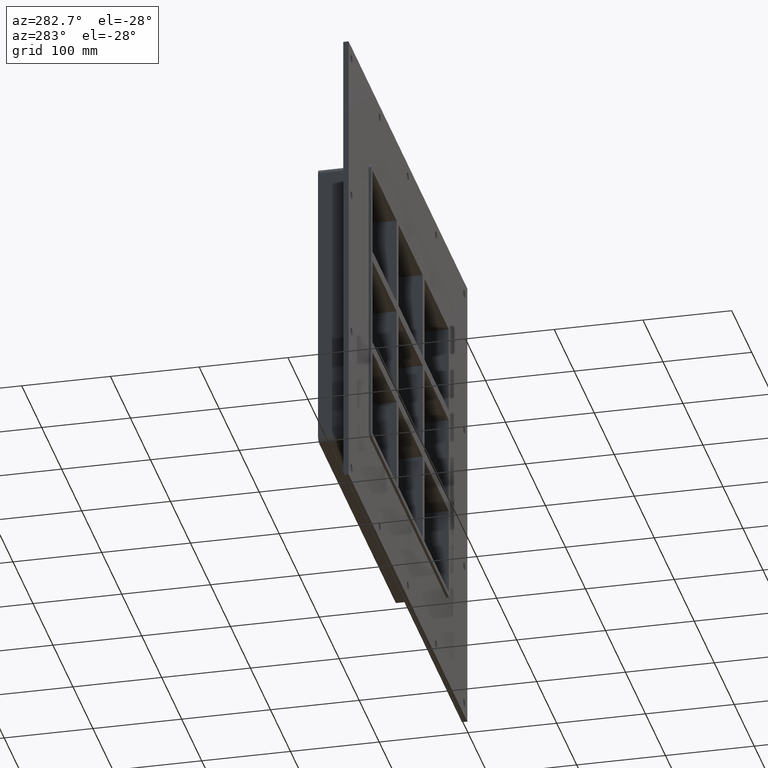
[diagram: clean part render]
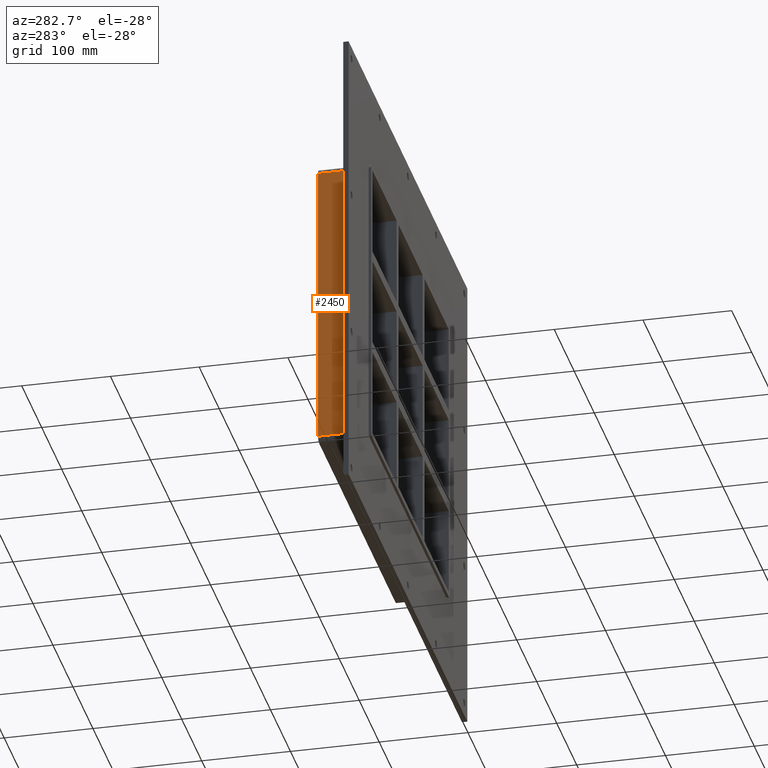
[diagram: same view with one face highlighted and labeled with its STEP entity id]
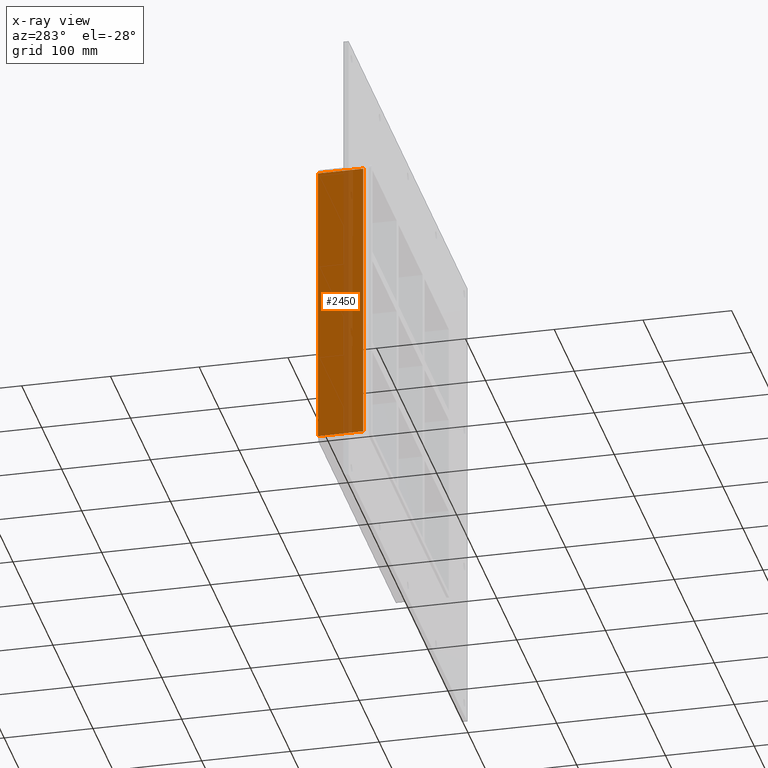
[diagram: x-ray of the same camera — body ghosted, the highlighted face saturated]
A machine part, auxiliary view. The second image highlights one B-rep face of the part: STEP entity #2450.
The next image is the same camera in x-ray: the body ghosted, the highlighted face saturated — about 20% of this face is hidden behind the body in this view.
In plain terms, the highlighted planar face has unit normal (-1, 0, 0).
Its self-contained STEP definition (entity closure, byte-faithful):
#972=CARTESIAN_POINT('',(-196.75000000000006,57.0,-163.5));
#973=VERTEX_POINT('',#972);
#981=CARTESIAN_POINT('',(-196.75000000000006,57.0,163.5));
#982=VERTEX_POINT('',#981);
#983=CARTESIAN_POINT('',(-196.75000000000006,57.0,-163.5));
#984=DIRECTION('',(0.0,0.0,1.0));
#985=VECTOR('',#984,327.0);
#986=LINE('',#983,#985);
#987=EDGE_CURVE('',#973,#982,#986,.T.);
#1907=CARTESIAN_POINT('',(-196.75000000000006,6.000000000000001,-163.5));
#1908=VERTEX_POINT('',#1907);
#1958=CARTESIAN_POINT('',(-196.75000000000006,6.000000000000001,163.5));
#1959=VERTEX_POINT('',#1958);
#1967=CARTESIAN_POINT('',(-196.75000000000006,6.000000000000001,-163.5));
#1968=DIRECTION('',(0.0,0.0,1.0));
#1969=VECTOR('',#1968,327.0);
#1970=LINE('',#1967,#1969);
#1971=EDGE_CURVE('',#1908,#1959,#1970,.T.);
#2423=CARTESIAN_POINT('',(-196.75000000000006,6.000000000000001,-163.5));
#2424=DIRECTION('',(0.0,1.0,0.0));
#2425=VECTOR('',#2424,51.0);
#2426=LINE('',#2423,#2425);
#2427=EDGE_CURVE('',#1908,#973,#2426,.T.);
#2434=CARTESIAN_POINT('',(-196.75000000000006,0.0,-169.50000000000003));
#2435=DIRECTION('',(-1.0,0.0,0.0));
#2436=DIRECTION('',(0.0,0.0,1.0));
#2437=AXIS2_PLACEMENT_3D('',#2434,#2435,#2436);
#2438=PLANE('',#2437);
#2439=ORIENTED_EDGE('',*,*,#1971,.T.);
#2440=CARTESIAN_POINT('',(-196.75000000000006,57.0,163.5));
#2441=DIRECTION('',(0.0,-1.0,0.0));
#2442=VECTOR('',#2441,51.0);
#2443=LINE('',#2440,#2442);
#2444=EDGE_CURVE('',#982,#1959,#2443,.T.);
#2445=ORIENTED_EDGE('',*,*,#2444,.F.);
#2446=ORIENTED_EDGE('',*,*,#987,.F.);
#2447=ORIENTED_EDGE('',*,*,#2427,.F.);
#2448=EDGE_LOOP('',(#2439,#2445,#2446,#2447));
#2449=FACE_OUTER_BOUND('',#2448,.T.);
#2450=ADVANCED_FACE('',(#2449),#2438,.T.);